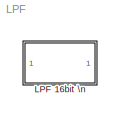
MODEL LPF
KIND model
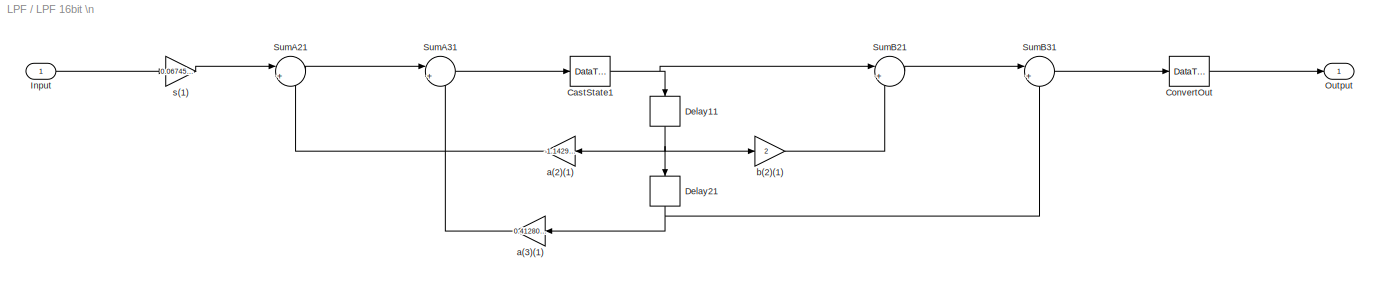
BLOCK [SubSystem] LPF 16bit \n
  ErrorFcn = dspFilterRealizedInBasicElemsAlgLoopErrFcnCallback
  Ports = [1, 1]
  RequestExecContextInheritance = off
  SID = 1
  Tag = FilterWizardSubSystem
  UserData = DataTag0
  UserDataPersistent = on
BLOCK [DataTypeConversion] LPF 16bit \n/CastState1
  OutDataTypeStr = fixdt(1,16,6)
  RndMeth = Floor
  SID = 3
  SaturateOnIntegerOverflow = off
BLOCK [DataTypeConversion] LPF 16bit \n/ConvertOut
  OutDataTypeStr = fixdt(1,16,4)
  RndMeth = Floor
  SID = 4
  SaturateOnIntegerOverflow = off
BLOCK [Delay] LPF 16bit \n/Delay11
  DelayLength = 1
  InitialCondition = 0
  InputPortMap = u0
  Ports = [1, 1]
  SID = 5
BLOCK [Delay] LPF 16bit \n/Delay21
  DelayLength = 1
  InitialCondition = 0
  InputPortMap = u0
  Ports = [1, 1]
  SID = 6
BLOCK [Inport] LPF 16bit \n/Input
  IconDisplay = Port number
  SID = 2
BLOCK [Outport] LPF 16bit \n/Output
  IconDisplay = Port number
  SID = 15
BLOCK [Sum] LPF 16bit \n/SumA21
  AccumDataTypeStr = fixdt(1,16,6)
  IconShape = round
  InputSameDT = off
  Inputs = |+-
  OutDataTypeStr = fixdt(1,16,6)
  Ports = [2, 1]
  SID = 7
  SaturateOnIntegerOverflow = off
BLOCK [Sum] LPF 16bit \n/SumA31
  AccumDataTypeStr = fixdt(1,16,6)
  IconShape = round
  InputSameDT = off
  Inputs = |+-
  OutDataTypeStr = fixdt(1,16,6)
  Ports = [2, 1]
  SID = 8
  SaturateOnIntegerOverflow = off
BLOCK [Sum] LPF 16bit \n/SumB21
  AccumDataTypeStr = fixdt(1,16,5)
  IconShape = round
  InputSameDT = off
  Inputs = |++
  OutDataTypeStr = fixdt(1,16,5)
  Ports = [2, 1]
  SID = 9
  SaturateOnIntegerOverflow = off
BLOCK [Sum] LPF 16bit \n/SumB31
  AccumDataTypeStr = fixdt(1,16,4)
  IconShape = round
  InputSameDT = off
  Inputs = |++
  OutDataTypeStr = fixdt(1,16,4)
  Ports = [2, 1]
  SID = 10
  SaturateOnIntegerOverflow = off
BLOCK [Gain] LPF 16bit \n/a(2)(1)
  Gain = -1.14298050253990113
  OutDataTypeStr = fixdt(1,16,6)
  ParamDataTypeStr = fixdt(1,16,14)
  SID = 11
  SaturateOnIntegerOverflow = off
BLOCK [Gain] LPF 16bit \n/a(3)(1)
  Gain = 0.412801598096188771
  OutDataTypeStr = fixdt(1,16,8)
  ParamDataTypeStr = fixdt(0,16,17)
  SID = 12
  SaturateOnIntegerOverflow = off
BLOCK [Gain] LPF 16bit \n/b(2)(1)
  Gain = 2
  OutDataTypeStr = fixdt(1,16,5)
  ParamDataTypeStr = fixdt(0,16,14)
  SID = 13
  SaturateOnIntegerOverflow = off
BLOCK [Gain] LPF 16bit \n/s(1)
  Gain = 0.0674552738890718956
  OutDataTypeStr = fixdt(1,16,8)
  ParamDataTypeStr = fixdt(0,16,19)
  SID = 14
  SaturateOnIntegerOverflow = off
NET LPF 16bit \n/CastState1:1 -> LPF 16bit \n/Delay11:1, LPF 16bit \n/SumB21:1
LINE LPF 16bit \n/ConvertOut:1 -> LPF 16bit \n/Output:1
NET LPF 16bit \n/Delay11:1 -> LPF 16bit \n/Delay21:1, LPF 16bit \n/a(2)(1):1, LPF 16bit \n/b(2)(1):1
NET LPF 16bit \n/Delay21:1 -> LPF 16bit \n/SumB31:2, LPF 16bit \n/a(3)(1):1
LINE LPF 16bit \n/Input:1 -> LPF 16bit \n/s(1):1
LINE LPF 16bit \n/SumA21:1 -> LPF 16bit \n/SumA31:1
LINE LPF 16bit \n/SumA31:1 -> LPF 16bit \n/CastState1:1
LINE LPF 16bit \n/SumB21:1 -> LPF 16bit \n/SumB31:1
LINE LPF 16bit \n/SumB31:1 -> LPF 16bit \n/ConvertOut:1
LINE LPF 16bit \n/a(2)(1):1 -> LPF 16bit \n/SumA21:2
LINE LPF 16bit \n/a(3)(1):1 -> LPF 16bit \n/SumA31:2
LINE LPF 16bit \n/b(2)(1):1 -> LPF 16bit \n/SumB21:2
LINE LPF 16bit \n/s(1):1 -> LPF 16bit \n/SumA21:1
note: NET lines group one-source signal fan-out (src -> all destinations, sorted); 1:1 wires keep LINE
